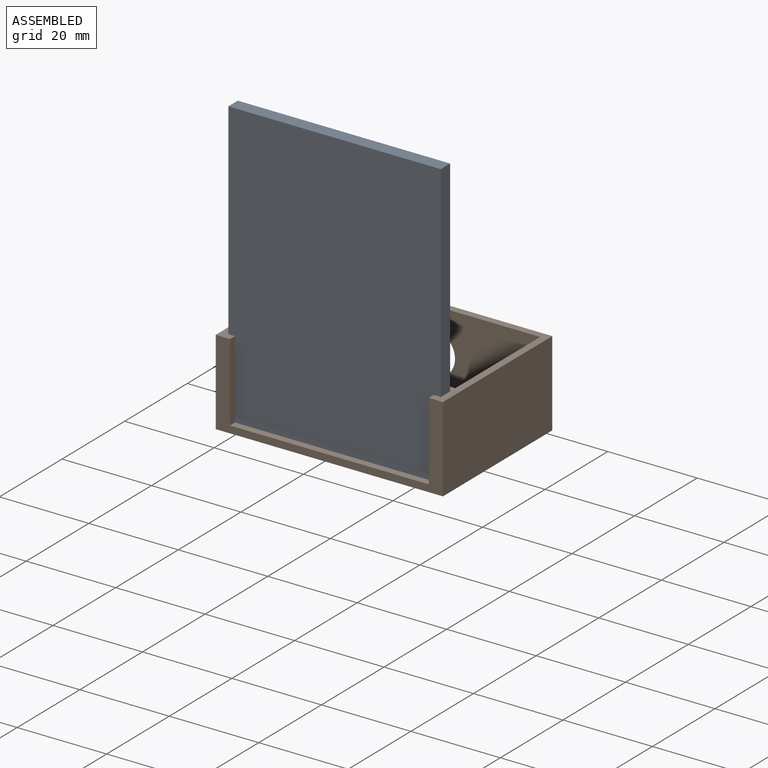
[diagram: assembled view]
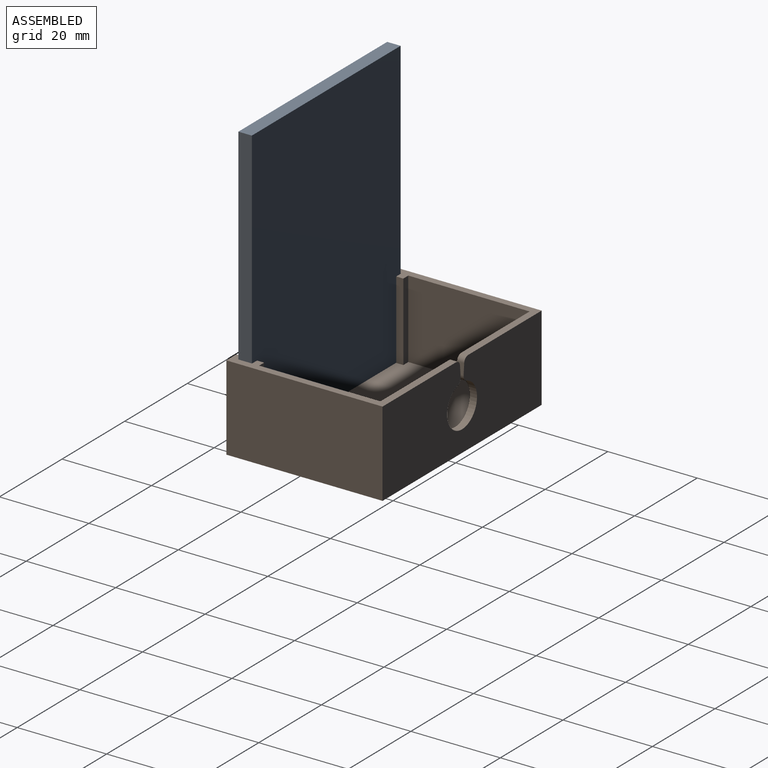
[diagram: assembled view, second angle]
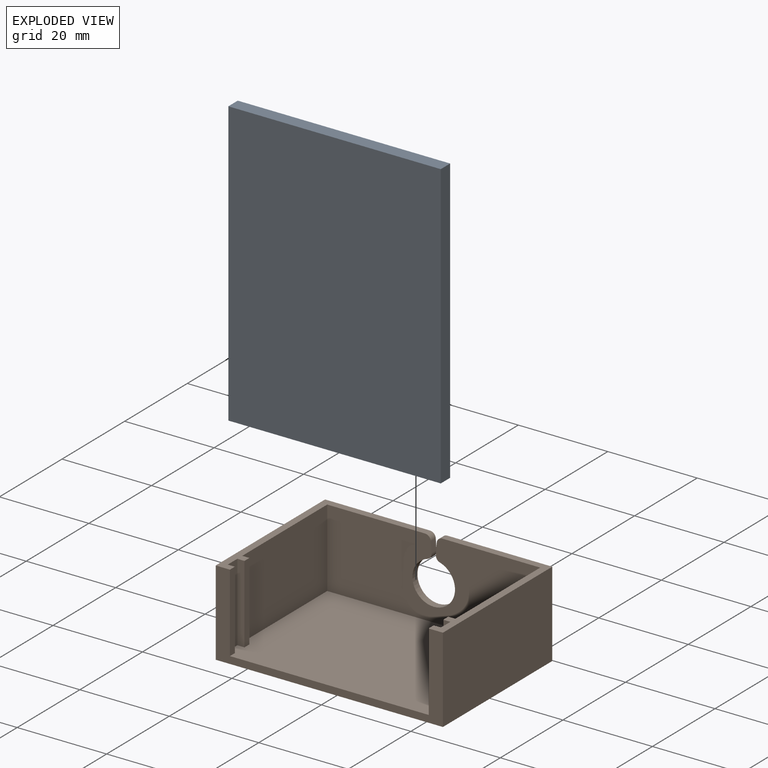
[diagram: exploded view]
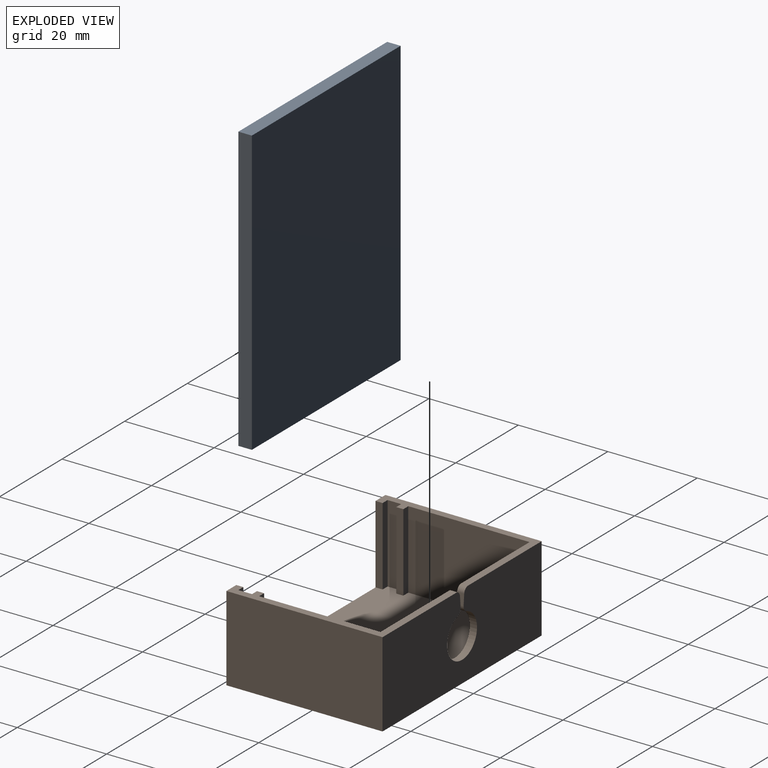
[diagram: exploded view, second angle]
ASSEMBLY  parts=2 mates=3
PART A: 6 faces, bbox 47.5x3x63.5 mm
  f0: plane 63.5x3mm, normal (1,0,0), area 190.5mm2, adj f1,f3,f4,f5
  f1: plane 47.5x3mm, normal (0,0,1), area 142.5mm2, adj f0,f2,f4,f5
  f2: plane 63.5x3mm, normal (-1,0,0), area 190.5mm2, adj f1,f3,f4,f5
  f3: plane 47.5x3mm, normal (0,0,-1), area 142.5mm2, adj f0,f2,f4,f5
  f4: plane 63.5x47.5mm, normal (0,-1,0), area 3016.1mm2, adj f0,f1,f2,f3
  f5: plane 63.5x47.5mm, normal (0,1,0), area 3016.1mm2, adj f0,f1,f2,f3
PART B: 30 faces, bbox 50.8x34.9x19.1 mm
  f0: plane 17.46x3.05mm, normal (-1,0,0), area 53.2mm2, adj f1,f7,f12,f27
  f1: plane 47.63x33.34mm, normal (0,0,1), area 1577.6mm2, adj f0,f2,f5,f6,f8,f12,f13,f14
  f2: plane 17.46x3.05mm, normal (1,0,0), area 53.2mm2, adj f1,f3,f6,f24
  f3: plane 34.93x23.47mm, normal (0,0,1), area 95.2mm2, adj f2,f4,f5,f6,f8,f10,f14,f15
  f4: plane 50.8x19.05mm, normal (0,1,0), area 890mm2, adj f3,f7,f9,f10,f11,f17,f18,f19
  f5: plane 47.63x17.46mm, normal (0,-1,0), area 753.9mm2, adj f1,f3,f7,f13,f14,f17,f18,f19
  f6: plane 17.46x1.59mm, normal (0,1,0), area 27.7mm2, adj f1,f2,f3,f15
  f7: plane 34.93x23.47mm, normal (0,0,1), area 95.2mm2, adj f0,f4,f5,f8,f9,f12,f13,f16
  f8: plane 50.8x19.05mm, normal (0,-1,0), area 191.5mm2, adj f1,f3,f7,f9,f10,f11,f15,f16
  f9: plane 34.93x19.05mm, normal (1,0,0), area 665.3mm2, adj f4,f7,f8,f11
  f10: plane 34.93x19.05mm, normal (-1,0,0), area 665.3mm2, adj f3,f4,f8,f11
  f11: plane 50.8x34.93mm, normal (0,0,-1), area 1774.2mm2, adj f4,f8,f9,f10
  f12: plane 17.46x1.59mm, normal (0,1,0), area 27.7mm2, adj f0,f1,f7,f16
  f13: plane 27.11x17.46mm, normal (-1,0,0), area 473.5mm2, adj f1,f5,f7,f28
  f14: plane 27.11x17.46mm, normal (1,0,0), area 473.5mm2, adj f1,f3,f5,f26
  f15: plane 17.46x1.59mm, normal (1,0,0), area 27.7mm2, adj f1,f3,f6,f8
  f16: plane 17.46x1.59mm, normal (-1,0,0), area 27.7mm2, adj f1,f7,f8,f12
  f17: cylinder r=4.76mm len=9.53mm, axis (0,1,0), area 43.1mm2, adj f4,f5,f20,f23
  f18: plane 2.48x1.59mm, normal (1,0,0.08), area 3.9mm2, adj f4,f5,f20,f21
  f19: plane 2.48x1.59mm, normal (-1,0,0.08), area 3.9mm2, adj f4,f5,f22,f23
  f20: cylinder r=1.27mm len=1.59mm, axis (0,1,0), area 2.7mm2, adj f4,f5,f17,f18
  f21: cylinder r=1.27mm len=1.59mm, axis (0,-1,0), area 3mm2, adj f3,f4,f5,f18
  f22: cylinder r=1.27mm len=1.59mm, axis (0,-1,0), area 3mm2, adj f4,f5,f7,f19
  f23: cylinder r=1.27mm len=1.59mm, axis (0,1,0), area 2.7mm2, adj f4,f5,f17,f19
  f24: plane 17.46x1.59mm, normal (0,-1,0), area 27.7mm2, adj f1,f2,f3,f25
  f25: plane 17.46x1.59mm, normal (1,0,0), area 27.7mm2, adj f1,f3,f24,f26
  f26: plane 17.46x1.59mm, normal (0,1,0), area 27.7mm2, adj f1,f3,f14,f25
  f27: plane 17.46x1.59mm, normal (0,-1,0), area 27.7mm2, adj f0,f1,f7,f29
  f28: plane 17.46x1.59mm, normal (0,1,0), area 27.7mm2, adj f1,f7,f13,f29
  f29: plane 17.46x1.59mm, normal (-1,0,0), area 27.7mm2, adj f1,f7,f27,f28
PLACE A t=(0.06,-12.88,33.34)mm
PLACE B at identity fixed
MATE planar A.f3 <-> B.f1  axis (0,0,-1) through (0.06,-14.38,1.59)mm
MATE planar A.f4 <-> B.f6  axis (0,-1,0) through (0.06,-15.88,33.34)mm
MATE planar A.f0 <-> B.f0  axis (1,0,0) through (23.81,-14.38,33.34)mm
